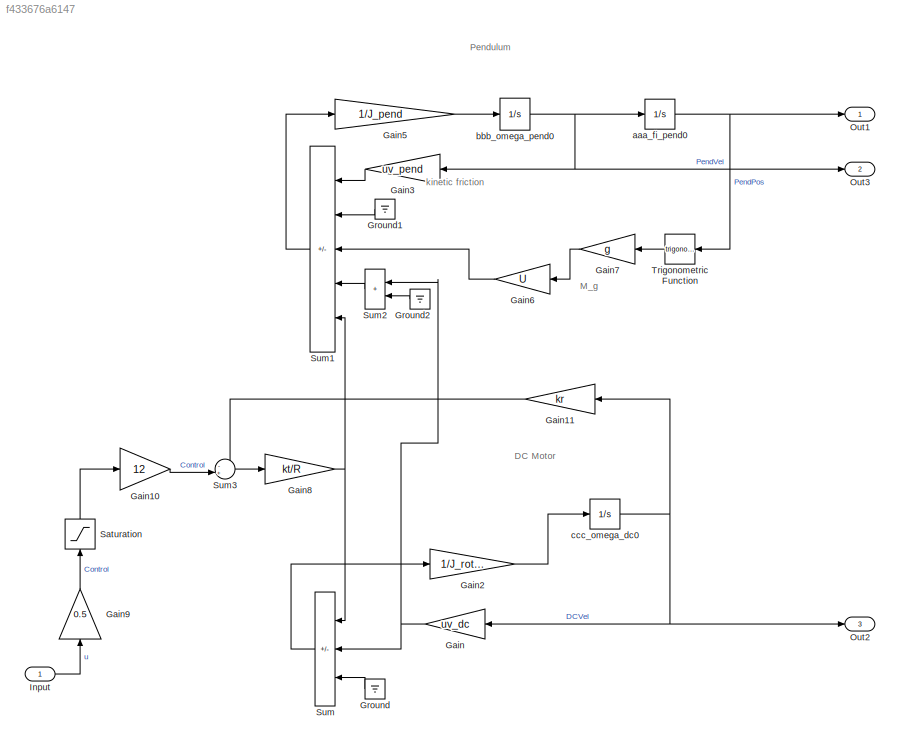
MODEL slx_f433676a6147
KIND model
CONFIG AbsTol = auto
CONFIG EnableMultiTasking = off
CONFIG FixedStep = auto
CONFIG MaxStep = auto
CONFIG MinStep = auto
CONFIG RelTol = 1e-3
CONFIG SampleTimeConstraint = Unconstrained
CONFIG SolverName = ode3
CONFIG StartTime = 0.0
CONFIG StopTime = t(end)
BLOCK [Gain] Gain
  Gain = uv_dc
  NameLocation = top
BLOCK [Gain] Gain10
  Gain = 12
BLOCK [Gain] Gain11
  Gain = kr
BLOCK [Gain] Gain2
  Gain = 1/J_rotor
BLOCK [Gain] Gain3
  Gain = uv_pend
  NameLocation = top
BLOCK [Gain] Gain5
  Gain = 1/J_pend
BLOCK [Gain] Gain6
  Gain = U
  NameLocation = top
BLOCK [Gain] Gain7
  Gain = g
  NameLocation = top
BLOCK [Gain] Gain8
  Gain = kt/R
BLOCK [Gain] Gain9
  Gain = 0.5
  NameLocation = right
BLOCK [Ground] Ground
BLOCK [Ground] Ground1
BLOCK [Ground] Ground2
BLOCK [Inport] Input
BLOCK [Outport] Out1
  SignalName = PendPos_sim
  VectorParamsAs1DForOutWhenUnconnected = off
BLOCK [Outport] Out2
  Port = 3
  SignalName = DCVel_sim
  VectorParamsAs1DForOutWhenUnconnected = off
BLOCK [Outport] Out3
  Port = 2
  SignalName = PendVel_sim
  VectorParamsAs1DForOutWhenUnconnected = off
BLOCK [Saturate] Saturation
  LowerLimit = -1
  NameLocation = right
  UpperLimit = 1
BLOCK [Sum] Sum
  IconShape = rectangular
  Inputs = +--
  NameLocation = top
BLOCK [Sum] Sum1
  IconShape = rectangular
  Inputs = --++-
  NameLocation = top
BLOCK [Sum] Sum2
  IconShape = rectangular
  NameLocation = top
BLOCK [Sum] Sum3
  Inputs = -+|
BLOCK [Trigonometry] Trigonometric Function
  NameLocation = top
BLOCK [Integrator] aaa_fi_pend0
BLOCK [Integrator] bbb_omega_pend0
BLOCK [Integrator] ccc_omega_dc0
ANNOTATION (root): DC Motor
ANNOTATION (root): Pendulum
ANNOTATION (root): M_g
ANNOTATION (root): kinetic friction
LINE Gain10:1 -> Sum3:2
LINE Gain11:1 -> Sum3:1
LINE Gain2:1 -> ccc_omega_dc0:1
LINE Gain3:1 -> Sum1:1
LINE Gain5:1 -> bbb_omega_pend0:1
LINE Gain6:1 -> Sum1:3
LINE Gain7:1 -> Gain6:1
NET Gain8:1 -> Sum1:5, Sum:1
LINE Gain9:1 -> Saturation:1
NET Gain:1 -> Sum2:1, Sum:2
LINE Ground1:1 -> Sum1:2
LINE Ground2:1 -> Sum2:2
LINE Ground:1 -> Sum:3
LINE Input:1 -> Gain9:1
LINE Saturation:1 -> Gain10:1
LINE Sum1:1 -> Gain5:1
LINE Sum2:1 -> Sum1:4
LINE Sum3:1 -> Gain8:1
LINE Sum:1 -> Gain2:1
LINE Trigonometric Function:1 -> Gain7:1
NET aaa_fi_pend0:1 -> Out1:1, Trigonometric Function:1
NET bbb_omega_pend0:1 -> Gain3:1, Out3:1, aaa_fi_pend0:1
NET ccc_omega_dc0:1 -> Gain11:1, Gain:1, Out2:1
note: NET lines group one-source signal fan-out (src -> all destinations, sorted); 1:1 wires keep LINE
